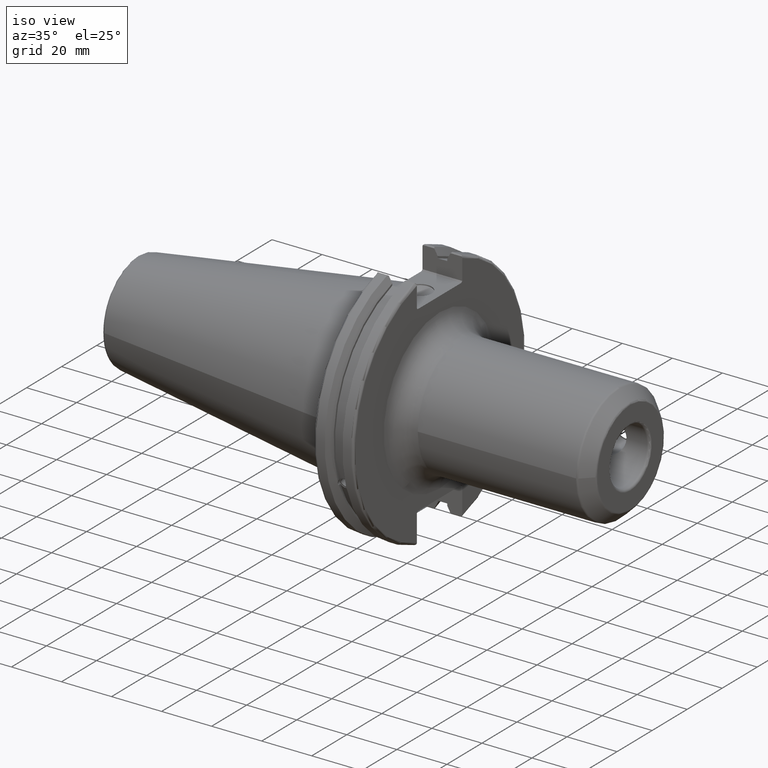
[diagram: clean part render]
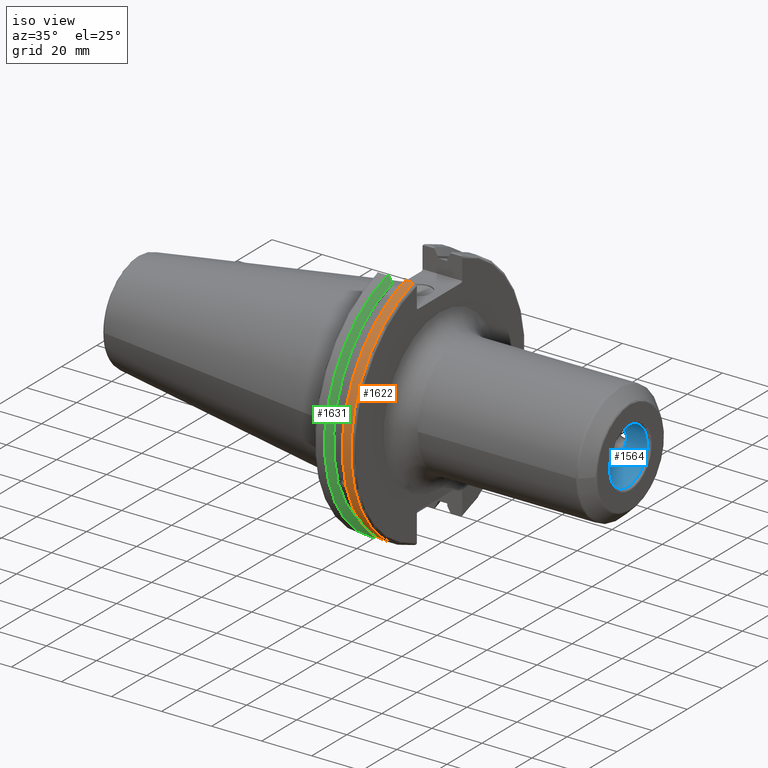
[diagram: same view with three faces highlighted in distinct colors, each labeled with its STEP entity id]
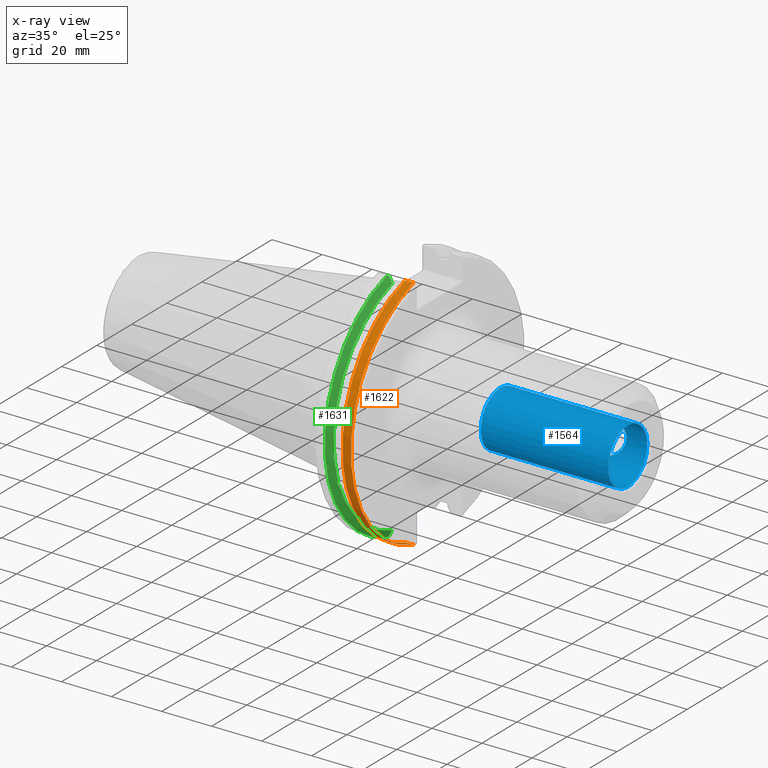
[diagram: x-ray of the same camera — body ghosted, the three highlighted faces saturated]
A machine part, iso view with three faces highlighted in distinct colors.
The next image is the same camera in x-ray (body ghosted, the three faces saturated) — at least one of them is partly hidden behind the body in this view.
Their STEP definitions:

[orange] entity #1622 — the highlighted cylindrical surface (partial cylindrical patch) has radius 49.2125 mm, axis along (1, 0, 0).
#188=LINE('',#3335,#282);
#189=LINE('',#3337,#283);
#282=VECTOR('',#2211,10.);
#283=VECTOR('',#2214,10.);
#312=CYLINDRICAL_SURFACE('',#1808,49.2125);
#415=FACE_OUTER_BOUND('',#530,.T.);
#530=EDGE_LOOP('',(#1423,#1424,#1425,#1426));
#587=CIRCLE('',#1729,49.2125);
#613=CIRCLE('',#1780,49.2125);
#702=VERTEX_POINT('',#2811);
#703=VERTEX_POINT('',#2815);
#767=VERTEX_POINT('',#3180);
#768=VERTEX_POINT('',#3189);
#883=EDGE_CURVE('',#703,#702,#587,.T.);
#970=EDGE_CURVE('',#767,#768,#613,.T.);
#1014=EDGE_CURVE('',#768,#702,#188,.T.);
#1015=EDGE_CURVE('',#703,#767,#189,.T.);
#1423=ORIENTED_EDGE('',*,*,#970,.F.);
#1424=ORIENTED_EDGE('',*,*,#1015,.F.);
#1425=ORIENTED_EDGE('',*,*,#883,.T.);
#1426=ORIENTED_EDGE('',*,*,#1014,.F.);
#1622=ADVANCED_FACE('',(#415),#312,.T.);
#1729=AXIS2_PLACEMENT_3D('',#2816,#1997,#1998);
#1780=AXIS2_PLACEMENT_3D('',#3190,#2135,#2136);
#1808=AXIS2_PLACEMENT_3D('',#3336,#2212,#2213);
#1997=DIRECTION('center_axis',(1.,0.,0.));
#1998=DIRECTION('ref_axis',(0.,0.,-1.));
#2135=DIRECTION('center_axis',(1.,0.,0.));
#2136=DIRECTION('ref_axis',(0.,-1.,1.60812264967664E-16));
#2211=DIRECTION('',(-1.,0.,0.));
#2212=DIRECTION('center_axis',(1.,0.,0.));
#2213=DIRECTION('ref_axis',(0.,-1.,1.22464679914735E-16));
#2214=DIRECTION('',(1.,0.,0.));
#2811=CARTESIAN_POINT('',(14.6602090340487,-13.4317035994433,-47.3440544806494));
#2815=CARTESIAN_POINT('',(14.6602090340487,-13.4317035994433,47.3440544806494));
#2816=CARTESIAN_POINT('Origin',(14.6602090340487,0.,0.));
#3180=CARTESIAN_POINT('',(18.05,-13.4317035994433,47.3440544806494));
#3189=CARTESIAN_POINT('',(18.05,-13.4317035994433,-47.3440544806494));
#3190=CARTESIAN_POINT('Origin',(18.05,0.,0.));
#3335=CARTESIAN_POINT('',(16.8551045170244,-13.4317035994433,-47.3440544806494));
#3336=CARTESIAN_POINT('Origin',(16.8551045170244,0.,0.));
#3337=CARTESIAN_POINT('',(16.8551045170244,-13.4317035994433,47.3440544806494));

[blue] entity #1564 — the highlighted cylindrical surface (bore or boss wall) has radius 11.1125 mm, axis along (1, 0, 0).
#57=B_SPLINE_CURVE_WITH_KNOTS('',3,(#2294,#2295,#2296,#2297,#2298,#2299,
#2300,#2301,#2302,#2303,#2304,#2305,#2306,#2307,#2308,#2309,#2310,#2311,
#2312,#2313,#2314,#2315,#2316,#2317,#2318,#2319),.UNSPECIFIED.,.F.,.F.,
(4,2,2,2,2,2,2,2,2,2,2,2,4),(0.,0.281933027749679,0.563866055499359,0.843170289896438,
1.12247452429352,1.4017787586906,1.68108299308768,1.96301602083735,2.24494904858703,
2.52688207633671,2.80881510408639,3.08811933848347,3.36742357288055),
 .UNSPECIFIED.);
#58=B_SPLINE_CURVE_WITH_KNOTS('',3,(#2320,#2321,#2322,#2323,#2324,#2325,
#2326,#2327,#2328,#2329),.UNSPECIFIED.,.F.,.F.,(4,2,2,2,4),(3.36742357288055,
3.64672780727763,3.92603204167471,4.20796506942439,4.48989809717407),
 .UNSPECIFIED.);
#61=B_SPLINE_CURVE_WITH_KNOTS('',3,(#2376,#2377,#2378,#2379,#2380,#2381,
#2382,#2383,#2384,#2385,#2386,#2387,#2388,#2389,#2390,#2391,#2392,#2393,
#2394,#2395,#2396,#2397,#2398,#2399,#2400,#2401),.UNSPECIFIED.,.F.,.F.,
(4,2,2,2,2,2,2,2,2,2,2,2,4),(0.,0.281933027749679,0.563866055499359,0.843170289896437,
1.12247452429352,1.40177875869059,1.68108299308767,1.96301602083735,2.24494904858703,
2.52688207633671,2.80881510408639,3.08811933848347,3.36742357288055),
 .UNSPECIFIED.);
#62=B_SPLINE_CURVE_WITH_KNOTS('',3,(#2402,#2403,#2404,#2405,#2406,#2407,
#2408,#2409,#2410,#2411),.UNSPECIFIED.,.F.,.F.,(4,2,2,2,4),(3.36742357288055,
3.64672780727763,3.92603204167471,4.20796506942439,4.48989809717407),
 .UNSPECIFIED.);
#109=LINE('',#2492,#203);
#203=VECTOR('',#1912,11.1125);
#294=CYLINDRICAL_SURFACE('',#1697,11.1125);
#324=FACE_BOUND('',#454,.T.);
#325=FACE_BOUND('',#455,.T.);
#357=FACE_OUTER_BOUND('',#453,.T.);
#453=EDGE_LOOP('',(#1093,#1094,#1095,#1096,#1097));
#454=EDGE_LOOP('',(#1098,#1099));
#455=EDGE_LOOP('',(#1100,#1101));
#569=CIRCLE('',#1694,11.1125);
#570=CIRCLE('',#1695,11.1125);
#572=CIRCLE('',#1698,11.1125);
#636=VERTEX_POINT('',#2291);
#637=VERTEX_POINT('',#2293);
#641=VERTEX_POINT('',#2373);
#642=VERTEX_POINT('',#2375);
#656=VERTEX_POINT('',#2485);
#657=VERTEX_POINT('',#2486);
#658=VERTEX_POINT('',#2491);
#799=EDGE_CURVE('',#637,#636,#57,.T.);
#800=EDGE_CURVE('',#636,#637,#58,.T.);
#806=EDGE_CURVE('',#642,#641,#61,.T.);
#807=EDGE_CURVE('',#641,#642,#62,.T.);
#826=EDGE_CURVE('',#656,#657,#569,.T.);
#827=EDGE_CURVE('',#657,#656,#570,.T.);
#829=EDGE_CURVE('',#657,#658,#109,.T.);
#830=EDGE_CURVE('',#658,#658,#572,.T.);
#1093=ORIENTED_EDGE('',*,*,#826,.F.);
#1094=ORIENTED_EDGE('',*,*,#827,.F.);
#1095=ORIENTED_EDGE('',*,*,#829,.T.);
#1096=ORIENTED_EDGE('',*,*,#830,.F.);
#1097=ORIENTED_EDGE('',*,*,#829,.F.);
#1098=ORIENTED_EDGE('',*,*,#799,.T.);
#1099=ORIENTED_EDGE('',*,*,#800,.T.);
#1100=ORIENTED_EDGE('',*,*,#806,.T.);
#1101=ORIENTED_EDGE('',*,*,#807,.T.);
#1564=ADVANCED_FACE('',(#357,#324,#325),#294,.F.);
#1694=AXIS2_PLACEMENT_3D('',#2487,#1904,#1905);
#1695=AXIS2_PLACEMENT_3D('',#2488,#1906,#1907);
#1697=AXIS2_PLACEMENT_3D('',#2490,#1910,#1911);
#1698=AXIS2_PLACEMENT_3D('',#2493,#1913,#1914);
#1904=DIRECTION('center_axis',(-1.,0.,0.));
#1905=DIRECTION('ref_axis',(0.,-1.,1.83697019872103E-16));
#1906=DIRECTION('center_axis',(-1.,0.,0.));
#1907=DIRECTION('ref_axis',(0.,-1.,1.83697019872103E-16));
#1910=DIRECTION('center_axis',(1.,0.,0.));
#1911=DIRECTION('ref_axis',(0.,1.,0.));
#1912=DIRECTION('',(-1.,0.,0.));
#1913=DIRECTION('center_axis',(1.,0.,0.));
#1914=DIRECTION('ref_axis',(0.,0.,-1.));
#2291=CARTESIAN_POINT('',(51.0245,11.1125,4.39372655364092E-16));
#2293=CARTESIAN_POINT('',(58.2,8.48527288895294,7.1755));
#2294=CARTESIAN_POINT('Ctrl Pts',(58.2,8.48527288895294,7.1755));
#2295=CARTESIAN_POINT('Ctrl Pts',(59.1397767591656,8.48527288895294,7.1755));
#2296=CARTESIAN_POINT('Ctrl Pts',(60.1095684401507,8.65754277864494,6.98181068733992));
#2297=CARTESIAN_POINT('Ctrl Pts',(61.8623082643019,9.20429458513503,6.2433695001157));
#2298=CARTESIAN_POINT('Ctrl Pts',(62.6491816592559,9.56596268125761,5.69850775755225));
#2299=CARTESIAN_POINT('Ctrl Pts',(63.8926832889388,10.2041365506141,4.45500612786932));
#2300=CARTESIAN_POINT('Ctrl Pts',(64.4414658183653,10.5294871609179,3.66674729545996));
#2301=CARTESIAN_POINT('Ctrl Pts',(65.1835417924526,10.9856296248722,1.90553901213518));
#2302=CARTESIAN_POINT('Ctrl Pts',(65.3755,11.1125,0.931014114656929));
#2303=CARTESIAN_POINT('Ctrl Pts',(65.3755,11.1125,-0.931014114656933));
#2304=CARTESIAN_POINT('Ctrl Pts',(65.1835417924526,10.9856296248722,-1.90553901213519));
#2305=CARTESIAN_POINT('Ctrl Pts',(64.4414658183653,10.5294871609179,-3.66674729545997));
#2306=CARTESIAN_POINT('Ctrl Pts',(63.8926832889388,10.2041365506141,-4.45500612786932));
#2307=CARTESIAN_POINT('Ctrl Pts',(62.6491816592559,9.56596268125761,-5.69850775755225));
#2308=CARTESIAN_POINT('Ctrl Pts',(61.8623082643019,9.20429458513503,-6.2433695001157));
#2309=CARTESIAN_POINT('Ctrl Pts',(60.1095684401507,8.65754277864494,-6.98181068733992));
#2310=CARTESIAN_POINT('Ctrl Pts',(59.1397767591656,8.48527288895294,-7.1755));
#2311=CARTESIAN_POINT('Ctrl Pts',(57.2602232408344,8.48527288895294,-7.1755));
#2312=CARTESIAN_POINT('Ctrl Pts',(56.2904315598493,8.65754277864494,-6.98181068733992));
#2313=CARTESIAN_POINT('Ctrl Pts',(54.537691735698,9.20429458513503,-6.2433695001157));
#2314=CARTESIAN_POINT('Ctrl Pts',(53.7508183407441,9.56596268125762,-5.69850775755225));
#2315=CARTESIAN_POINT('Ctrl Pts',(52.5073167110612,10.2041365506141,-4.45500612786932));
#2316=CARTESIAN_POINT('Ctrl Pts',(51.9585341816347,10.5294871609179,-3.66674729545996));
#2317=CARTESIAN_POINT('Ctrl Pts',(51.2164582075474,10.9856296248722,-1.90553901213519));
#2318=CARTESIAN_POINT('Ctrl Pts',(51.0245,11.1125,-0.931014114656929));
#2319=CARTESIAN_POINT('Ctrl Pts',(51.0245,11.1125,8.32667268468867E-16));
#2320=CARTESIAN_POINT('Ctrl Pts',(51.0245,11.1125,0.));
#2321=CARTESIAN_POINT('Ctrl Pts',(51.0245,11.1125,0.93101411465693));
#2322=CARTESIAN_POINT('Ctrl Pts',(51.2164582075474,10.9856296248722,1.90553901213519));
#2323=CARTESIAN_POINT('Ctrl Pts',(51.9585341816347,10.5294871609179,3.66674729545996));
#2324=CARTESIAN_POINT('Ctrl Pts',(52.5073167110612,10.2041365506141,4.45500612786932));
#2325=CARTESIAN_POINT('Ctrl Pts',(53.7508183407441,9.56596268125761,5.69850775755225));
#2326=CARTESIAN_POINT('Ctrl Pts',(54.537691735698,9.20429458513503,6.2433695001157));
#2327=CARTESIAN_POINT('Ctrl Pts',(56.2904315598493,8.65754277864494,6.98181068733992));
#2328=CARTESIAN_POINT('Ctrl Pts',(57.2602232408344,8.48527288895294,7.1755));
#2329=CARTESIAN_POINT('Ctrl Pts',(58.2,8.48527288895294,7.1755));
#2373=CARTESIAN_POINT('',(71.6245,11.1125,3.00594777285947E-16));
#2375=CARTESIAN_POINT('',(78.8,8.48527288895294,7.1755));
#2376=CARTESIAN_POINT('Ctrl Pts',(78.8,8.48527288895294,7.1755));
#2377=CARTESIAN_POINT('Ctrl Pts',(79.7397767591656,8.48527288895294,7.1755));
#2378=CARTESIAN_POINT('Ctrl Pts',(80.7095684401507,8.65754277864494,6.98181068733992));
#2379=CARTESIAN_POINT('Ctrl Pts',(82.4623082643019,9.20429458513502,6.24336950011571));
#2380=CARTESIAN_POINT('Ctrl Pts',(83.2491816592559,9.56596268125761,5.69850775755225));
#2381=CARTESIAN_POINT('Ctrl Pts',(84.4926832889388,10.2041365506141,4.45500612786932));
#2382=CARTESIAN_POINT('Ctrl Pts',(85.0414658183653,10.5294871609179,3.66674729545997));
#2383=CARTESIAN_POINT('Ctrl Pts',(85.7835417924526,10.9856296248722,1.90553901213518));
#2384=CARTESIAN_POINT('Ctrl Pts',(85.9755,11.1125,0.931014114656927));
#2385=CARTESIAN_POINT('Ctrl Pts',(85.9755,11.1125,-0.931014114656931));
#2386=CARTESIAN_POINT('Ctrl Pts',(85.7835417924526,10.9856296248722,-1.90553901213519));
#2387=CARTESIAN_POINT('Ctrl Pts',(85.0414658183653,10.5294871609179,-3.66674729545997));
#2388=CARTESIAN_POINT('Ctrl Pts',(84.4926832889388,10.2041365506141,-4.45500612786932));
#2389=CARTESIAN_POINT('Ctrl Pts',(83.2491816592559,9.56596268125761,-5.69850775755225));
#2390=CARTESIAN_POINT('Ctrl Pts',(82.4623082643019,9.20429458513502,-6.24336950011571));
#2391=CARTESIAN_POINT('Ctrl Pts',(80.7095684401507,8.65754277864494,-6.98181068733992));
#2392=CARTESIAN_POINT('Ctrl Pts',(79.7397767591656,8.48527288895294,-7.1755));
#2393=CARTESIAN_POINT('Ctrl Pts',(77.8602232408344,8.48527288895294,-7.1755));
#2394=CARTESIAN_POINT('Ctrl Pts',(76.8904315598493,8.65754277864494,-6.98181068733992));
#2395=CARTESIAN_POINT('Ctrl Pts',(75.137691735698,9.20429458513503,-6.2433695001157));
#2396=CARTESIAN_POINT('Ctrl Pts',(74.3508183407441,9.56596268125761,-5.69850775755225));
#2397=CARTESIAN_POINT('Ctrl Pts',(73.1073167110611,10.2041365506141,-4.45500612786932));
#2398=CARTESIAN_POINT('Ctrl Pts',(72.5585341816347,10.5294871609179,-3.66674729545996));
#2399=CARTESIAN_POINT('Ctrl Pts',(71.8164582075474,10.9856296248722,-1.90553901213519));
#2400=CARTESIAN_POINT('Ctrl Pts',(71.6245,11.1125,-0.931014114656928));
#2401=CARTESIAN_POINT('Ctrl Pts',(71.6245,11.1125,1.38777878078145E-15));
#2402=CARTESIAN_POINT('Ctrl Pts',(71.6245,11.1125,-2.77555756156289E-16));
#2403=CARTESIAN_POINT('Ctrl Pts',(71.6245,11.1125,0.931014114656929));
#2404=CARTESIAN_POINT('Ctrl Pts',(71.8164582075474,10.9856296248722,1.90553901213519));
#2405=CARTESIAN_POINT('Ctrl Pts',(72.5585341816347,10.5294871609179,3.66674729545996));
#2406=CARTESIAN_POINT('Ctrl Pts',(73.1073167110611,10.2041365506141,4.45500612786932));
#2407=CARTESIAN_POINT('Ctrl Pts',(74.3508183407441,9.56596268125761,5.69850775755225));
#2408=CARTESIAN_POINT('Ctrl Pts',(75.137691735698,9.20429458513503,6.2433695001157));
#2409=CARTESIAN_POINT('Ctrl Pts',(76.8904315598493,8.65754277864494,6.98181068733992));
#2410=CARTESIAN_POINT('Ctrl Pts',(77.8602232408344,8.48527288895294,7.1755));
#2411=CARTESIAN_POINT('Ctrl Pts',(78.8,8.48527288895294,7.1755));
#2485=CARTESIAN_POINT('',(94.3,-1.3608887555525E-15,11.1125));
#2486=CARTESIAN_POINT('',(94.3,-11.1125,-1.3608887555525E-15));
#2487=CARTESIAN_POINT('Origin',(94.3,0.,0.));
#2488=CARTESIAN_POINT('Origin',(94.3,0.,0.));
#2490=CARTESIAN_POINT('Origin',(69.3,0.,0.));
#2491=CARTESIAN_POINT('',(43.3,-11.1125,-1.3608887555525E-15));
#2492=CARTESIAN_POINT('',(69.3,-11.1125,-1.3608887555525E-15));
#2493=CARTESIAN_POINT('Origin',(43.3,0.,0.));

[green] entity #1631 — the highlighted conical surface has half-angle 60 deg.
#24=(
BOUNDED_CURVE()
B_SPLINE_CURVE(2,(#3211,#3212,#3213),.UNSPECIFIED.,.F.,.F.)
B_SPLINE_CURVE_WITH_KNOTS((3,3),(0.,0.275823910673799),.UNSPECIFIED.)
CURVE()
GEOMETRIC_REPRESENTATION_ITEM()
RATIONAL_B_SPLINE_CURVE((1.,1.00038235574547,1.00012873636808))
REPRESENTATION_ITEM('')
);
#25=(
BOUNDED_CURVE()
B_SPLINE_CURVE(2,(#3223,#3224,#3225),.UNSPECIFIED.,.F.,.F.)
B_SPLINE_CURVE_WITH_KNOTS((3,3),(0.0558332664508419,0.331657177124507),
 .UNSPECIFIED.)
CURVE()
GEOMETRIC_REPRESENTATION_ITEM()
RATIONAL_B_SPLINE_CURVE((1.00012873636699,1.00038235574223,1.))
REPRESENTATION_ITEM('')
);
#26=(
BOUNDED_CURVE()
B_SPLINE_CURVE(2,(#3258,#3259,#3260),.UNSPECIFIED.,.F.,.F.)
B_SPLINE_CURVE_WITH_KNOTS((3,3),(0.,0.064824047289869),.UNSPECIFIED.)
CURVE()
GEOMETRIC_REPRESENTATION_ITEM()
RATIONAL_B_SPLINE_CURVE((1.,1.00011477674823,1.00019140645925))
REPRESENTATION_ITEM('')
);
#27=(
BOUNDED_CURVE()
B_SPLINE_CURVE(2,(#3266,#3267,#3268),.UNSPECIFIED.,.F.,.F.)
B_SPLINE_CURVE_WITH_KNOTS((3,3),(0.325260944932363,0.390084992222202),
 .UNSPECIFIED.)
CURVE()
GEOMETRIC_REPRESENTATION_ITEM()
RATIONAL_B_SPLINE_CURVE((1.00019140645909,1.00011477674813,1.))
REPRESENTATION_ITEM('')
);
#54=CONICAL_SURFACE('',#1821,47.8172386482472,1.0471975511966);
#75=B_SPLINE_CURVE_WITH_KNOTS('',3,(#2745,#2746,#2747,#2748,#2749,#2750,
#2751,#2752,#2753,#2754,#2755,#2756,#2757,#2758),.UNSPECIFIED.,.F.,.F.,
(4,2,2,2,2,2,4),(0.426712868358719,0.441644498666907,0.480313313223131,
0.518982127779354,0.557650942335578,0.596319756891801,0.611251387199989),
 .UNSPECIFIED.);
#424=FACE_OUTER_BOUND('',#539,.T.);
#539=EDGE_LOOP('',(#1462,#1463,#1464,#1465,#1466,#1467,#1468,#1469));
#591=CIRCLE('',#1736,46.4219772964944);
#615=CIRCLE('',#1787,49.2125);
#627=CIRCLE('',#1822,46.4219772964944);
#690=VERTEX_POINT('',#2742);
#691=VERTEX_POINT('',#2744);
#708=VERTEX_POINT('',#2835);
#770=VERTEX_POINT('',#3208);
#771=VERTEX_POINT('',#3210);
#774=VERTEX_POINT('',#3222);
#778=VERTEX_POINT('',#3256);
#779=VERTEX_POINT('',#3262);
#868=EDGE_CURVE('',#691,#690,#75,.T.);
#891=EDGE_CURVE('',#691,#708,#591,.T.);
#975=EDGE_CURVE('',#771,#770,#24,.T.);
#981=EDGE_CURVE('',#774,#708,#25,.T.);
#989=EDGE_CURVE('',#778,#770,#26,.T.);
#991=EDGE_CURVE('',#778,#779,#615,.T.);
#992=EDGE_CURVE('',#774,#779,#27,.T.);
#1025=EDGE_CURVE('',#771,#690,#627,.T.);
#1462=ORIENTED_EDGE('',*,*,#868,.T.);
#1463=ORIENTED_EDGE('',*,*,#1025,.F.);
#1464=ORIENTED_EDGE('',*,*,#975,.T.);
#1465=ORIENTED_EDGE('',*,*,#989,.F.);
#1466=ORIENTED_EDGE('',*,*,#991,.T.);
#1467=ORIENTED_EDGE('',*,*,#992,.F.);
#1468=ORIENTED_EDGE('',*,*,#981,.T.);
#1469=ORIENTED_EDGE('',*,*,#891,.F.);
#1631=ADVANCED_FACE('',(#424),#54,.T.);
#1736=AXIS2_PLACEMENT_3D('',#2836,#2013,#2014);
#1787=AXIS2_PLACEMENT_3D('',#3264,#2160,#2161);
#1821=AXIS2_PLACEMENT_3D('',#3361,#2243,#2244);
#1822=AXIS2_PLACEMENT_3D('',#3362,#2245,#2246);
#2013=DIRECTION('center_axis',(1.,0.,0.));
#2014=DIRECTION('ref_axis',(0.,0.,-1.));
#2160=DIRECTION('center_axis',(1.,0.,0.));
#2161=DIRECTION('ref_axis',(0.,0.,-1.));
#2243=DIRECTION('center_axis',(-1.,0.,0.));
#2244=DIRECTION('ref_axis',(0.,-1.,-1.22464679914735E-16));
#2245=DIRECTION('center_axis',(1.,0.,0.));
#2246=DIRECTION('ref_axis',(0.,0.,-1.));
#2742=CARTESIAN_POINT('',(9.2191,-43.9096390749305,-15.0646464421033));
#2744=CARTESIAN_POINT('',(9.2191,-43.3201030900029,-16.684383248648));
#2745=CARTESIAN_POINT('Ctrl Pts',(9.2191,-43.3201030900029,-16.6843832486479));
#2746=CARTESIAN_POINT('Ctrl Pts',(9.20211843903392,-43.3613106941341,-16.6592273018006));
#2747=CARTESIAN_POINT('Ctrl Pts',(9.18608675403322,-43.4012416983557,-16.6326763251437));
#2748=CARTESIAN_POINT('Ctrl Pts',(9.13238673845037,-43.5391037343221,-16.5325130832406));
#2749=CARTESIAN_POINT('Ctrl Pts',(9.09621610663555,-43.6406982153491,-16.4411807953719));
#2750=CARTESIAN_POINT('Ctrl Pts',(9.04690868251975,-43.8110833825827,-16.2291323464527));
#2751=CARTESIAN_POINT('Ctrl Pts',(9.0341,-43.8794096049168,-16.10796730316));
#2752=CARTESIAN_POINT('Ctrl Pts',(9.0341,-43.9675796948952,-15.8657219718732));
#2753=CARTESIAN_POINT('Ctrl Pts',(9.04690868251975,-43.9931221605125,-15.7289849146254));
#2754=CARTESIAN_POINT('Ctrl Pts',(9.09621610663555,-43.9989016655819,-15.4570249042868));
#2755=CARTESIAN_POINT('Ctrl Pts',(9.13238673845037,-43.9797830409458,-15.3217566390708));
#2756=CARTESIAN_POINT('Ctrl Pts',(9.18608675403322,-43.9385582852181,-15.1564111356409));
#2757=CARTESIAN_POINT('Ctrl Pts',(9.20211843903392,-43.9250360001461,-15.1104047527575));
#2758=CARTESIAN_POINT('Ctrl Pts',(9.2191,-43.9096390749305,-15.0646464421033));
#2835=CARTESIAN_POINT('',(9.2191,-12.95,-44.5791147973604));
#2836=CARTESIAN_POINT('Origin',(9.2191,0.,0.));
#3208=CARTESIAN_POINT('',(7.88638960562424,-12.95,46.9780755322918));
#3210=CARTESIAN_POINT('',(9.2191,-12.95,44.5791147973604));
#3211=CARTESIAN_POINT('Ctrl Pts',(9.2191,-12.95,44.5791147973604));
#3212=CARTESIAN_POINT('Ctrl Pts',(8.57020449054213,-12.95,45.7494966802443));
#3213=CARTESIAN_POINT('Ctrl Pts',(7.88638960562424,-12.95,46.9780755322918));
#3222=CARTESIAN_POINT('',(7.88638960562425,-12.95,-46.9780755322917));
#3223=CARTESIAN_POINT('Ctrl Pts',(7.88638960562425,-12.95,-46.9780755322917));
#3224=CARTESIAN_POINT('Ctrl Pts',(8.5702044905427,-12.95,-45.7494966802433));
#3225=CARTESIAN_POINT('Ctrl Pts',(9.2191,-12.95,-44.5791147973604));
#3256=CARTESIAN_POINT('',(7.60799096595127,-13.4317035994433,47.3440544806494));
#3258=CARTESIAN_POINT('Ctrl Pts',(7.60799096595127,-13.4317035994433,47.3440544806494));
#3259=CARTESIAN_POINT('Ctrl Pts',(7.74826896663813,-13.1896660169967,47.1601640966265));
#3260=CARTESIAN_POINT('Ctrl Pts',(7.88638960562424,-12.95,46.9780755322918));
#3262=CARTESIAN_POINT('',(7.60799096595127,-13.4317035994433,-47.3440544806494));
#3264=CARTESIAN_POINT('Origin',(7.60799096595127,0.,0.));
#3266=CARTESIAN_POINT('Ctrl Pts',(7.88638960562425,-12.95,-46.9780755322917));
#3267=CARTESIAN_POINT('Ctrl Pts',(7.74826896663813,-13.1896660169967,-47.1601640966265));
#3268=CARTESIAN_POINT('Ctrl Pts',(7.60799096595127,-13.4317035994433,-47.3440544806494));
#3361=CARTESIAN_POINT('Origin',(8.41354548297563,0.,0.));
#3362=CARTESIAN_POINT('Origin',(9.2191,0.,0.));